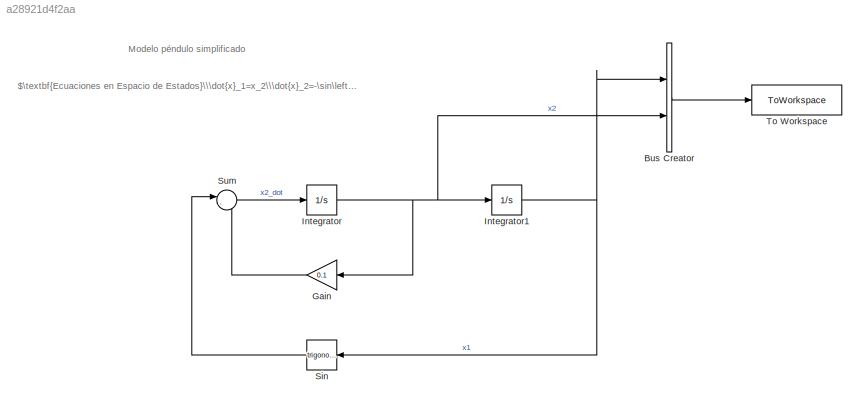
MODEL slx_a28921d4f2aa
KIND model
CONFIG AbsTol = auto
CONFIG EnableMultiTasking = off
CONFIG FixedStep = auto
CONFIG MaxStep = auto
CONFIG MinStep = auto
CONFIG RelTol = 1e-3
CONFIG SampleTimeConstraint = Unconstrained
CONFIG SolverName = VariableStepAuto
CONFIG StartTime = 0.0
CONFIG StopTime = 10.0
BLOCK [BusCreator] Bus Creator
  DisplayOption = bar
  InheritFromInputs = on
  Inputs = 2
  Ports = [2, 1]
BLOCK [Gain] Gain
  Gain = 0.1
BLOCK [Integrator] Integrator
  InitialCondition = y0(2)
  Ports = [1, 1]
BLOCK [Integrator] Integrator1
  InitialCondition = y0(1)
  Ports = [1, 1]
BLOCK [Trigonometry] Sin
  Ports = [1, 1]
BLOCK [Sum] Sum
  Inputs = |--
  Ports = [2, 1]
BLOCK [ToWorkspace] To Workspace
  FixptAsFi = on
  MaxDataPoints = inf
  Ports = [1]
  SampleTime = -1
  SaveFormat = Timeseries
  VariableName = x
ANNOTATION (root): $\textbf{Ecuaciones en Espacio de Estados}\\\dot{x}_1=x_2\\\dot{x}_2=-\sin\left(x_1\right)-0.1\cdot x_2$
ANNOTATION (root): Modelo péndulo simplificado
LINE Bus Creator:1 -> To Workspace:1
LINE Gain:1 -> Sum:2
NET Integrator1:1 -> Bus Creator:1, Sin:1
NET Integrator:1 -> Bus Creator:2, Gain:1, Integrator1:1
LINE Sin:1 -> Sum:1
LINE Sum:1 -> Integrator:1
note: NET lines group one-source signal fan-out (src -> all destinations, sorted); 1:1 wires keep LINE
